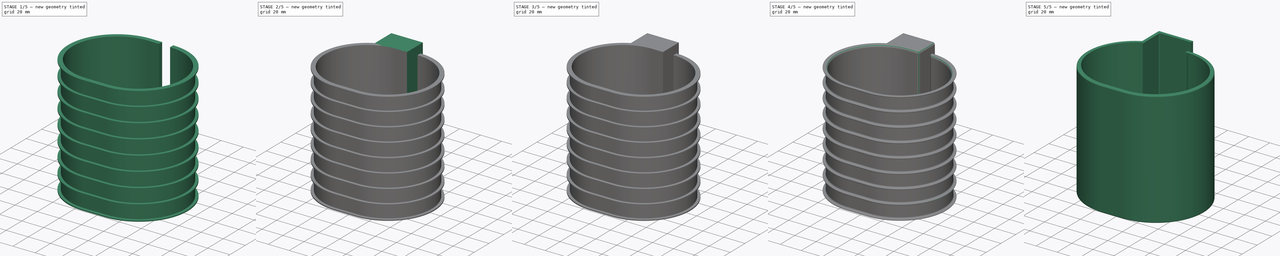
[diagram: build sequence overview — one tinted view per stage of 5, left to right]
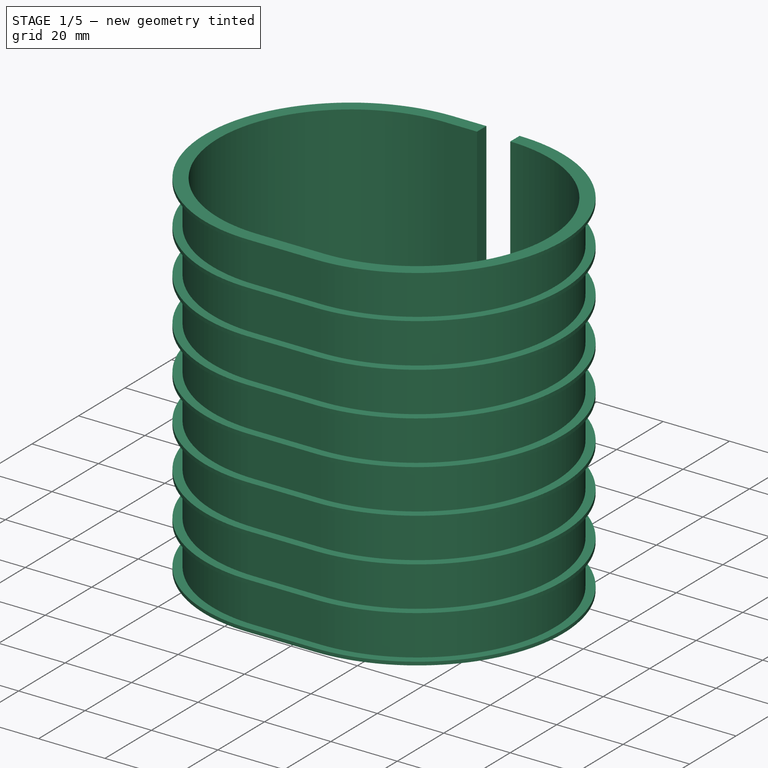
[diagram: stage 1 of 5 — iso view after this stage's code; geometry added in this stage tinted green]
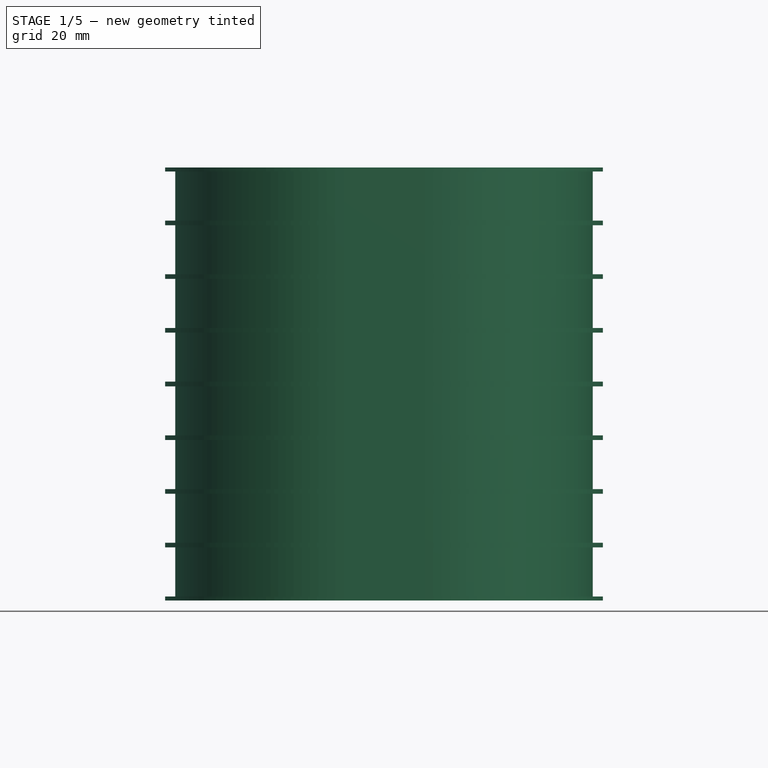
[diagram: stage 1 of 5 — front view after this stage's code; geometry added in this stage tinted green]
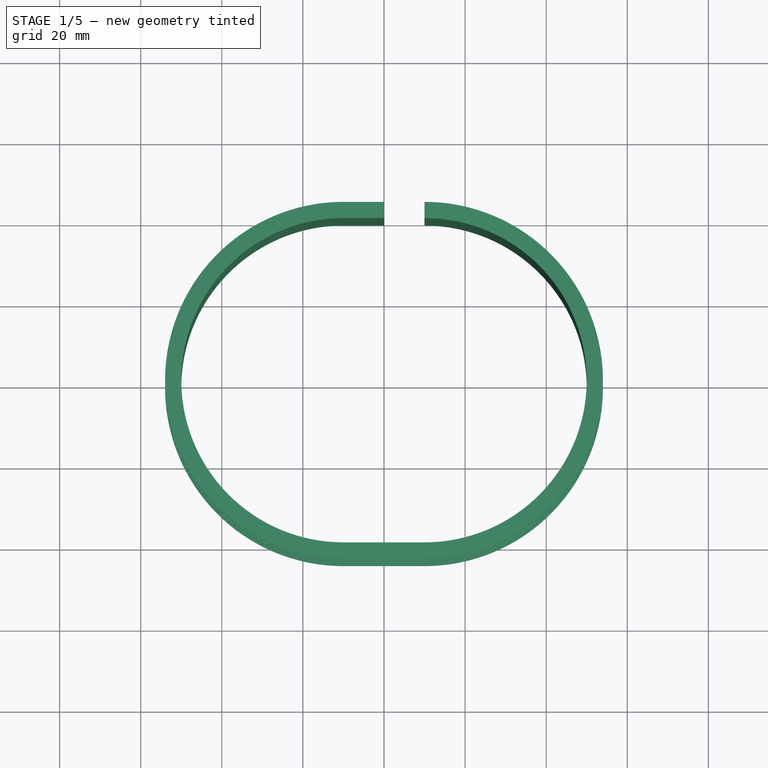
[diagram: stage 1 of 5 — top view after this stage's code; geometry added in this stage tinted green]
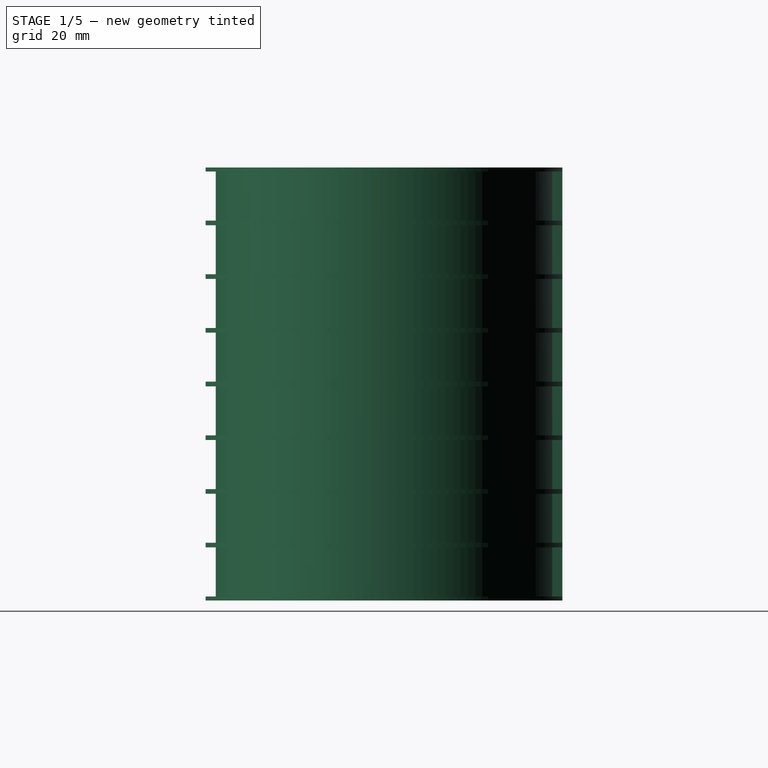
[diagram: stage 1 of 5 — right view after this stage's code; geometry added in this stage tinted green]
FCSTD DOCUMENT  (FreeCAD 1.0R39319 (Git))
Label: led-shield
License: All rights reserved
LicenseURL: https://en.wikipedia.org/wiki/All_rights_reserved
objects: Part::Feature×37, Sketcher::SketchObject×14, PartDesign::Pad×10, App::Part×7, PartDesign::Pocket×5, PartDesign::Fillet×5, PartDesign::Body×3, PartDesign::Mirrored×2, App::VarSet×1, PartDesign::Groove×1, PartDesign::LinearPattern×1, PartDesign::MultiTransform×1, PartDesign::SubShapeBinder×1, PartDesign::Plane×1, PartDesign::Chamfer×1
note: 144 computed .brp shape members not serialized (recipe doc carries the construction recipe); baked Part::Feature solids carry a one-line shape summary decoded from their .brp

FEATURE [Sketcher::SketchObject] Sketch
  ArcFitTolerance = 1e-06
  AttachmentSupport = -> [XY_Plane]
  FullyConstrained = true
  MakeInternals = false
  MapMode = 5
  expr: Constraints[17] = <<VarSet>>.WallThichness + <<VarSet>>.GrooveDepth
  sketch-geometry (8):
    g0: LineSegment StartX=-10 StartY=40 StartZ=0 EndX=10 EndY=40 EndZ=0
    g1: ArcOfCircle CenterX=10 CenterY=-4.2e-15 CenterZ=0 NormalX=0 NormalY=0 NormalZ=1 AngleXU=0 Radius=40 StartAngle=4.71239 EndAngle=7.85398
    g2: LineSegment StartX=10 StartY=-40 StartZ=0 EndX=-10 EndY=-40 EndZ=0
    g3: ArcOfCircle CenterX=-10 CenterY=0 CenterZ=0 NormalX=0 NormalY=0 NormalZ=1 AngleXU=0 Radius=40 StartAngle=1.5708 EndAngle=4.71239
    g4: LineSegment StartX=-10 StartY=44 StartZ=0 EndX=10 EndY=44 EndZ=0
    g5: ArcOfCircle CenterX=10 CenterY=4.724e-13 CenterZ=0 NormalX=0 NormalY=0 NormalZ=1 AngleXU=0 Radius=44 StartAngle=4.71239 EndAngle=7.85398
    g6: LineSegment StartX=10 StartY=-44 StartZ=0 EndX=-10 EndY=-44 EndZ=0
    g7: ArcOfCircle CenterX=-10 CenterY=0 CenterZ=0 NormalX=0 NormalY=0 NormalZ=1 AngleXU=0 Radius=44 StartAngle=1.5708 EndAngle=4.71239
  constraints (18):
    c: Tangent(g0,g1) = 1.5708
    c: Horizontal(g2)
    c: Tangent(g2,g3) = 1.5708
    c: Tangent(g3,g0) = 1.5708
    c: Symmetric(g0,g0,g-2)
    c: PointOnObject(g3,g-1)
    c: Tangent(g1,g2) = 1.5708
    c: Distance(g0,g0) = 20
    c: Radius(g3) = 40
    c: Tangent(g4,g5) = 1.5708
    c: Coincident(g5,g6)
    c: Horizontal(g6)
    c: Tangent(g6,g7) = 1.5708
    c: Equal(g2,g6)
    c: Coincident(g7,g3)
    c: Tangent(g7,g4) = 1.5708
    c: Symmetric(g4,g4,g-2)
    c: Distance(g4,g0) = 4
FEATURE [PartDesign::Pad] Pad
  Direction = (0,0,1)
  Length = 106.8
  Length2 = 10
  Profile = -> Sketch
  ReferenceAxis = -> Sketch [N_Axis]
  Refine = true
  Suppressed = false
  Type = 0
  expr: Length = (<<VarSet>>.RowGap + <<VarSet>>.GrooveWidth) * <<VarSet>>.Rows - <<VarSet>>.RowGap + 2 * <<VarSet>>.WallThichness
FEATURE [App::VarSet] VarSet
  GrooveDepth = 2.5
  GrooveWidth = 12.1
  RowGap = 1
  Rows = 8
  ShellOffset = 0.5
  ShellThickness = 1
  WallThichness = 1.5
FEATURE [Sketcher::SketchObject] Sketch001
  ArcFitTolerance = 1e-06
  AttachmentSupport = -> [Pad]
  ExternalGeometry = -> [Pad]
  FullyConstrained = true
  MakeInternals = false
  MapMode = 5
  Placement = pos=(1.874e-13,44,0) rot=(0,0.707107,0.707107;3.14159rad)
  sketch-geometry (4):
    g0: LineSegment StartX=-10 StartY=106.8 StartZ=0 EndX=-10 EndY=0 EndZ=0
    g1: LineSegment StartX=-10 StartY=0 StartZ=0 EndX=0 EndY=0 EndZ=0
    g2: LineSegment StartX=0 StartY=0 StartZ=0 EndX=0 EndY=106.8 EndZ=0
    g3: LineSegment StartX=0 StartY=106.8 StartZ=0 EndX=-10 EndY=106.8 EndZ=0
  constraints (10):
    c: Coincident(g0,g1)
    c: Coincident(g1,g2)
    c: Coincident(g2,g3)
    c: Coincident(g3,g0)
    c: Vertical(g0)
    c: Vertical(g2)
    c: Horizontal(g1)
    c: Horizontal(g3)
    c: Coincident(g0,g-3)
    c: Coincident(g1,g-1)
FEATURE [PartDesign::Pocket] Pocket
  BaseFeature = -> Pad
  Direction = (-4.3e-15,-1,2e-16)
  Length = 5
  Length2 = 5
  Profile = -> Sketch001
  ReferenceAxis = -> Sketch001 [N_Axis]
  Refine = true
  Suppressed = false
  Type = 2
FEATURE [Sketcher::SketchObject] Sketch002
  ArcFitTolerance = 1e-06
  AttachmentSupport = -> [Pocket]
  ExternalGeometry = -> [Pocket]
  FullyConstrained = true
  MakeInternals = false
  MapMode = 5
  Placement = pos=(10,-4.26e-14,0) rot=(-0.57735,0.57735,0.57735;4.18879rad)
  expr: Constraints[10] = <<VarSet>>.GrooveWidth
  expr: Constraints[11] = <<VarSet>>.RowGap
  expr: Constraints[9] = <<VarSet>>.GrooveDepth
  sketch-geometry (4):
    g0: LineSegment StartX=-44 StartY=13.1 StartZ=0 EndX=-44 EndY=1 EndZ=0
    g1: LineSegment StartX=-44 StartY=1 StartZ=0 EndX=-41.5 EndY=1 EndZ=0
    g2: LineSegment StartX=-41.5 StartY=1 StartZ=0 EndX=-41.5 EndY=13.1 EndZ=0
    g3: LineSegment StartX=-41.5 StartY=13.1 StartZ=0 EndX=-44 EndY=13.1 EndZ=0
  constraints (12):
    c: Coincident(g0,g1)
    c: Coincident(g1,g2)
    c: Coincident(g2,g3)
    c: Coincident(g3,g0)
    c: Vertical(g0)
    c: Vertical(g2)
    c: Horizontal(g1)
    c: Horizontal(g3)
    c: PointOnObject(g0,g-3)
    c: Distance(g3,g3) = 2.5
    c: Distance(g0,g0) = 12.1
    c: DistanceY(g-1,g0) = 1
FEATURE [PartDesign::Groove] Groove
  Angle = 180
  Angle2 = 60
  Axis = (1e-16,-1e-16,1)
  Base = (10,-4.26e-14,0)
  BaseFeature = -> Pocket
  Profile = -> Sketch002
  ReferenceAxis = -> Sketch002 [V_Axis]
  Refine = true
  Reversed = true
  Suppressed = false
  Type = 0
FEATURE [Sketcher::SketchObject] Sketch003
  ArcFitTolerance = 1e-06
  AttachmentSupport = -> [Groove]
  ExternalGeometry = -> [Groove]
  FullyConstrained = true
  MakeInternals = false
  MapMode = 5
  Placement = pos=(10,-4.26e-14,0) rot=(0.57735,0.57735,0.57735;2.0944rad)
  sketch-geometry (4):
    g0: LineSegment StartX=-44 StartY=13.1 StartZ=0 EndX=-44 EndY=1 EndZ=0
    g1: LineSegment StartX=-44 StartY=1 StartZ=0 EndX=-41.5 EndY=1 EndZ=0
    g2: LineSegment StartX=-41.5 StartY=1 StartZ=0 EndX=-41.5 EndY=13.1 EndZ=0
    g3: LineSegment StartX=-41.5 StartY=13.1 StartZ=0 EndX=-44 EndY=13.1 EndZ=0
  constraints (10):
    c: Coincident(g0,g1)
    c: Coincident(g1,g2)
    c: Coincident(g2,g3)
    c: Coincident(g3,g0)
    c: Vertical(g0)
    c: Vertical(g2)
    c: Horizontal(g1)
    c: Horizontal(g3)
    c: Coincident(g0,g-3)
    c: Coincident(g1,g-4)
FEATURE [PartDesign::Pocket] Pocket001
  BaseFeature = -> Groove
  Direction = (-1,4.1e-15,1e-16)
  Length = 20
  Length2 = 5
  Profile = -> Sketch003
  ReferenceAxis = -> Sketch003 [N_Axis]
  Refine = true
  Suppressed = false
  Type = 0
FEATURE [PartDesign::Mirrored] Mirrored
  MirrorPlane = -> YZ_Plane
  Refine = true
  Suppressed = false
  TransformMode = 0
FEATURE [PartDesign::LinearPattern] LinearPattern
  Direction = -> Z_Axis
  Length = 92.7
  Mode = 0
  Occurrences = 8
  Offset = 13.2429
  Refine = true
  Suppressed = false
  TransformMode = 0
  expr: Length = <<Pad>>.Length - 2 * <<VarSet>>.RowGap - <<VarSet>>.GrooveWidth
  expr: Occurrences = <<VarSet>>.Rows
FEATURE [PartDesign::MultiTransform] MultiTransform
  BaseFeature = -> Pocket001
  Originals = -> [Pocket001,Groove]
  Refine = true
  Suppressed = false
  TransformMode = 0
  Transformations = -> [Mirrored,LinearPattern]
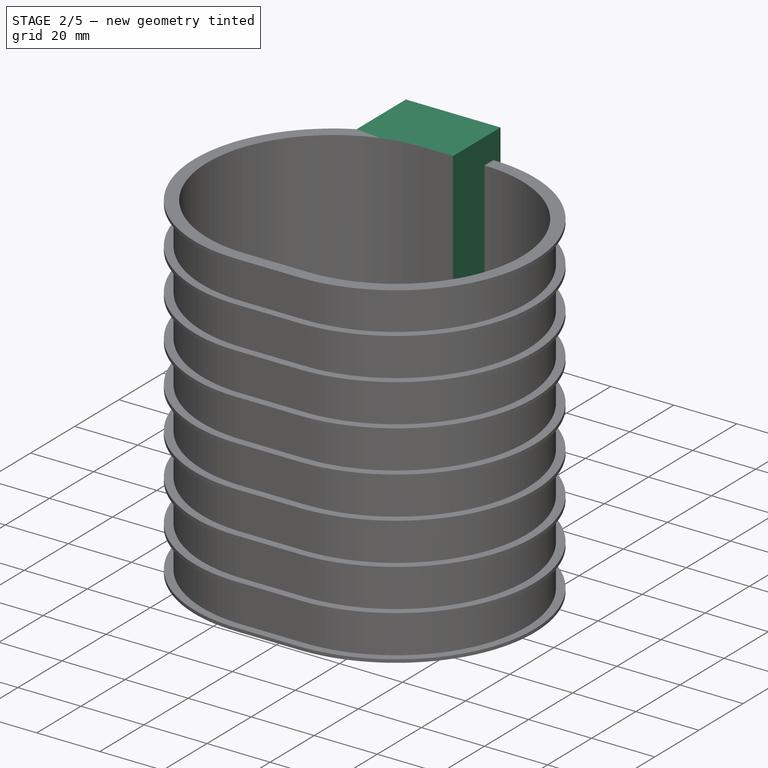
[diagram: stage 2 of 5 — iso view after this stage's code; geometry added in this stage tinted green]
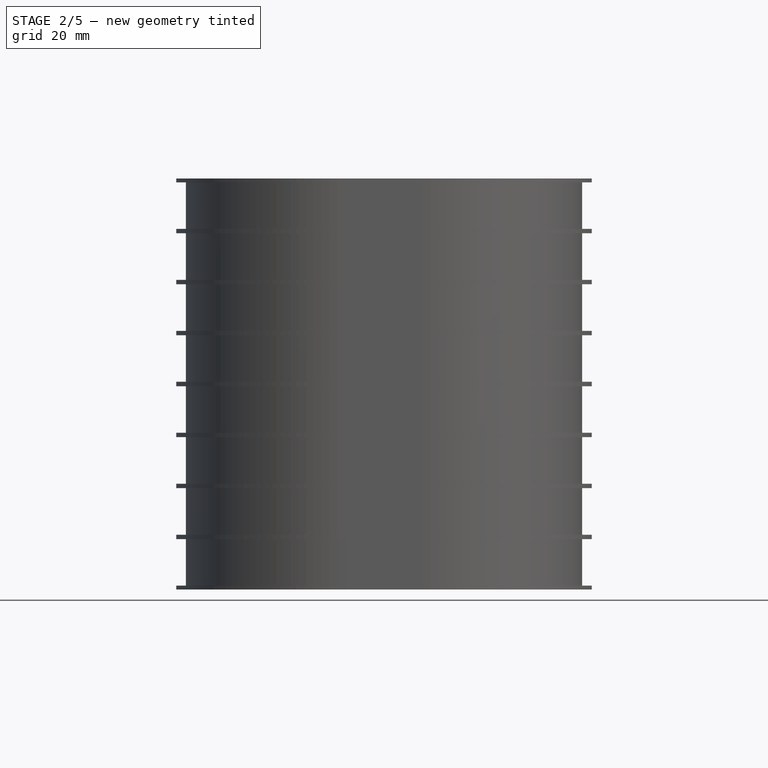
[diagram: stage 2 of 5 — front view after this stage's code; geometry added in this stage tinted green]
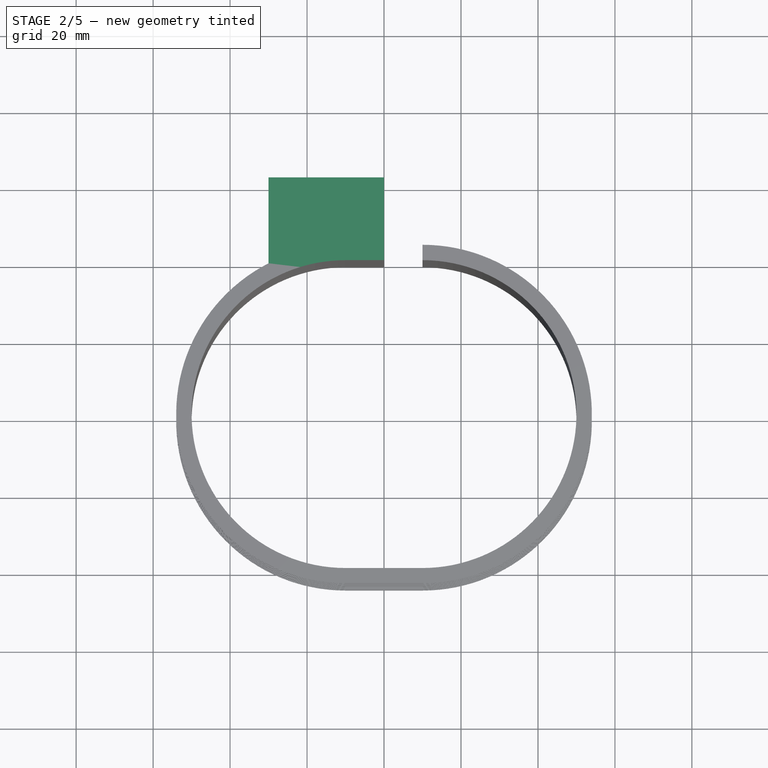
[diagram: stage 2 of 5 — top view after this stage's code; geometry added in this stage tinted green]
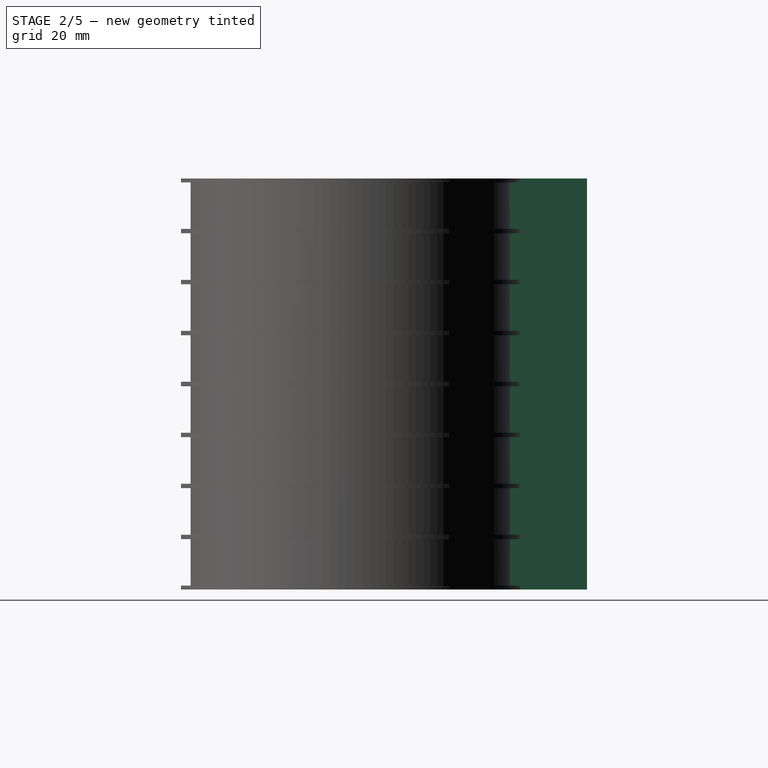
[diagram: stage 2 of 5 — right view after this stage's code; geometry added in this stage tinted green]
FEATURE [Sketcher::SketchObject] Sketch004
  ArcFitTolerance = 1e-06
  AttachmentSupport = -> [MultiTransform]
  ExternalGeometry = -> [MultiTransform]
  FullyConstrained = true
  MakeInternals = false
  MapMode = 5
  Placement = pos=(-10,-4.04e-14,-2.2e-15) rot=(0.57735,-0.57735,-0.57735;2.0944rad)
  sketch-geometry (4):
    g0: LineSegment StartX=-44 StartY=106.8 StartZ=0 EndX=-44 EndY=0 EndZ=0
    g1: LineSegment StartX=-44 StartY=0 StartZ=0 EndX=-40 EndY=0 EndZ=0
    g2: LineSegment StartX=-40 StartY=0 StartZ=0 EndX=-40 EndY=106.8 EndZ=0
    g3: LineSegment StartX=-40 StartY=106.8 StartZ=0 EndX=-44 EndY=106.8 EndZ=0
  constraints (10):
    c: Coincident(g0,g1)
    c: Coincident(g1,g2)
    c: Coincident(g2,g3)
    c: Coincident(g3,g0)
    c: Vertical(g0)
    c: Vertical(g2)
    c: Horizontal(g1)
    c: Horizontal(g3)
    c: Coincident(g0,g-4)
    c: Coincident(g1,g-3)
FEATURE [PartDesign::Pad] Pad001
  BaseFeature = -> MultiTransform
  Direction = (-1,-4e-15,0)
  Length = 20
  Length2 = 10
  Profile = -> Sketch004
  ReferenceAxis = -> Sketch004 [N_Axis]
  Refine = true
  Suppressed = false
  Type = 0
FEATURE [PartDesign::Pad] Pad002
  BaseFeature = -> Pad001
  Direction = (-2.3e-15,1,0)
  Length = 17.5
  Length2 = 10
  Profile = -> Pad001 [Face76]
  Refine = true
  Suppressed = false
  Type = 0
FEATURE [Sketcher::SketchObject] Sketch005
  ArcFitTolerance = 1e-06
  AttachmentSupport = -> [Pad002]
  ExternalGeometry = -> [Pad002]
  FullyConstrained = true
  MakeInternals = false
  MapMode = 5
  Placement = pos=(-1.433e-13,61.5,0) rot=(0,0.707107,0.707107;3.14159rad)
  expr: Constraints[22] = VarSet.WallThichness
  sketch-geometry (8):
    g0: LineSegment StartX=1.5 StartY=105.3 StartZ=0 EndX=1.5 EndY=1.5 EndZ=0
    g1: LineSegment StartX=1.5 StartY=1.5 StartZ=0 EndX=28.5 EndY=1.5 EndZ=0
    g2: LineSegment StartX=28.5 StartY=1.5 StartZ=0 EndX=28.5 EndY=105.3 EndZ=0
    g3: LineSegment StartX=28.5 StartY=105.3 StartZ=0 EndX=1.5 EndY=105.3 EndZ=0
    g4: LineSegment [constr] StartX=28.5 StartY=105.3 StartZ=0 EndX=30 EndY=105.3 EndZ=0
    g5: LineSegment [constr] StartX=28.5 StartY=1.5 StartZ=0 EndX=28.5 EndY=0 EndZ=0
    g6: LineSegment [constr] StartX=1.5 StartY=105.3 StartZ=0 EndX=1.69e-14 EndY=105.3 EndZ=0
    g7: LineSegment [constr] StartX=28.5 StartY=105.3 StartZ=0 EndX=28.5 EndY=106.8 EndZ=0
  constraints (24):
    c: Coincident(g0,g1)
    c: Coincident(g1,g2)
    c: Coincident(g2,g3)
    c: Coincident(g3,g0)
    c: Vertical(g0)
    c: Vertical(g2)
    c: Horizontal(g1)
    c: Horizontal(g3)
    c: Coincident(g4,g2)
    c: PointOnObject(g4,g-4)
    c: Horizontal(g4)
    c: Coincident(g5,g1)
    c: PointOnObject(g5,g-1)
    c: Coincident(g6,g0)
    c: PointOnObject(g6,g-5)
    c: Horizontal(g6)
    c: Equal(g6,g4)
    c: Vertical(g5)
    c: Coincident(g7,g2)
    c: PointOnObject(g7,g-3)
    c: Vertical(g7)
    c: Equal(g7,g4)
    c: Distance(g4,g4) = 1.5
    c: Equal(g5,g4)
FEATURE [PartDesign::Pocket] Pocket002
  BaseFeature = -> Pad002
  Direction = (2.3e-15,-1,2e-16)
  Length = 20
  Length2 = 5
  Profile = -> Sketch005
  ReferenceAxis = -> Sketch005 [N_Axis]
  Refine = true
  Suppressed = false
  Type = 0
  expr: Length = <<Pad002>>.Length + <<VarSet>>.GrooveDepth
FEATURE [PartDesign::Body] Body001  label="18650"
  AllowCompound = false
  Group = -> [Sketch007,Pad004]
  Origin = -> Origin001
  Placement = pos=(-11,51.5,47) rot=(0,0,1;0rad)
  Tip = -> Pad004
FEATURE [Sketcher::SketchObject] Sketch008
  ArcFitTolerance = 1e-06
  AttachmentSupport = -> [Pocket002]
  ExternalGeometry = -> [Pocket002]
  FullyConstrained = true
  MakeInternals = false
  MapMode = 5
  Placement = pos=(0,0,-1e-16) rot=(1,0,0;3.14159rad)
  sketch-geometry (3):
    g0: LineSegment StartX=-30 StartY=-36.3628 StartZ=0 EndX=-30 EndY=-40 EndZ=0
    g1: ArcOfCircle CenterX=-10 CenterY=-2.2e-15 CenterZ=0 NormalX=0 NormalY=0 NormalZ=1 AngleXU=0 Radius=41.5 StartAngle=4.20954 EndAngle=4.44271
    g2: LineSegment StartX=-30 StartY=-40 StartZ=0 EndX=-21.0567 EndY=-40 EndZ=0
  constraints (7):
    c: Vertical(g0)
    c: Coincident(g1,g-3)
    c: Coincident(g1,g0)
    c: Coincident(g1,g-4)
    c: Coincident(g0,g-5)
    c: Coincident(g2,g0)
    c: Coincident(g2,g1)
FEATURE [PartDesign::Pad] Pad005
  BaseFeature = -> Pocket002
  Direction = (0,0,-1)
  Length = 106.8
  Length2 = 10
  Profile = -> Sketch008
  ReferenceAxis = -> Sketch008 [N_Axis]
  Refine = true
  Reversed = true
  Suppressed = false
  Type = 0
  expr: Length = <<Pad>>.Length
FEATURE [Sketcher::SketchObject] Sketch009
  ArcFitTolerance = 1e-06
  AttachmentSupport = -> [Pad005]
  ExternalGeometry = -> [Pad005]
  FullyConstrained = true
  MakeInternals = false
  MapMode = 5
  Placement = pos=(0,2.32e-14,105.3) rot=(1,0,0;3.14159rad)
  sketch-geometry (7):
    g0: ArcOfCircle CenterX=-10.9868 CenterY=-51.5 CenterZ=0 NormalX=0 NormalY=0 NormalZ=1 AngleXU=0 Radius=9.5 StartAngle=0.0526559 EndAngle=3.08894
    g1: LineSegment StartX=-1.5 StartY=-51 StartZ=0 EndX=-1.5 EndY=-41.5 EndZ=0
    g2: LineSegment StartX=-20.4737 StartY=-51 StartZ=0 EndX=-20.4737 EndY=-41.5 EndZ=0
    g3: GeomPoint X=-10.9868 Y=-41.5 Z=0
    g4: LineSegment StartX=-20.4737 StartY=-41.5 StartZ=0 EndX=-1.5 EndY=-41.5 EndZ=0
    g5: GeomPoint X=-10.9868 Y=-42 Z=0
    g6: LineSegment [constr] StartX=-10.9868 StartY=-42 StartZ=0 EndX=-10.9868 EndY=-41.5 EndZ=0
  constraints (17):
    c: Coincident(g1,g0)
    c: Vertical(g1)
    c: Coincident(g2,g0)
    c: PointOnObject(g2,g-3)
    c: Vertical(g2)
    c: Coincident(g1,g-3)
    c: Equal(g1,g2)
    c: Radius(g0) = 9.5
    c: Symmetric(g1,g2,g3)
    c: Distance(g2,g2) = 9.5
    c: Coincident(g4,g2)
    c: Coincident(g4,g1)
    c: PointOnObject(g5,g0)
    c: Coincident(g6,g5)
    c: Coincident(g6,g3)
    c: Vertical(g6)
    c: Distance(g6,g6) = 0.5
FEATURE [PartDesign::Pad] Pad006
  BaseFeature = -> Pad005
  Direction = (0,0,-1)
  Length = 60
  Length2 = 10
  Profile = -> Sketch009
  ReferenceAxis = -> Sketch009 [N_Axis]
  Refine = true
  Suppressed = false
  Type = 0
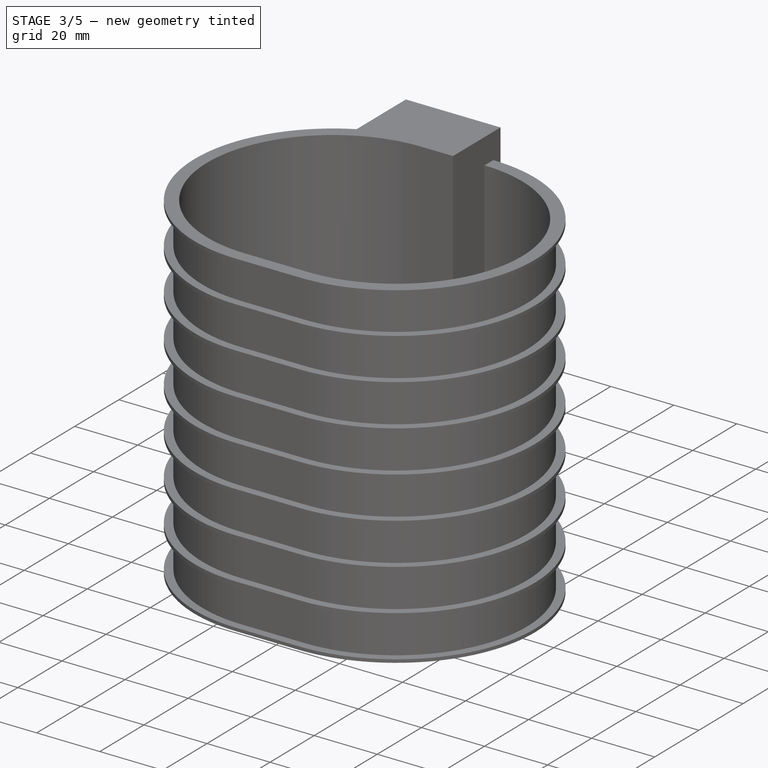
[diagram: stage 3 of 5 — iso view after this stage's code; geometry added in this stage tinted green]
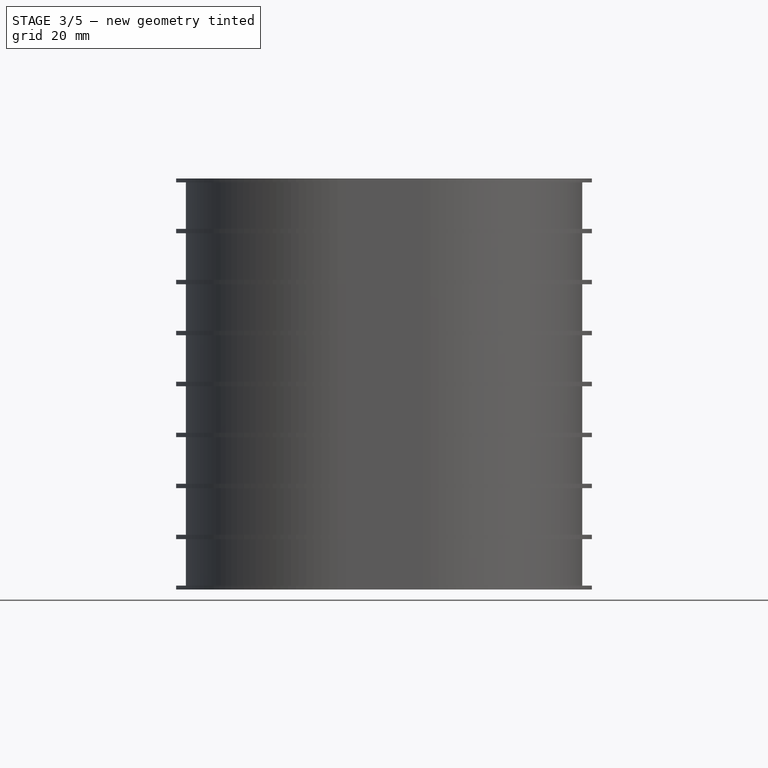
[diagram: stage 3 of 5 — front view after this stage's code; geometry added in this stage tinted green]
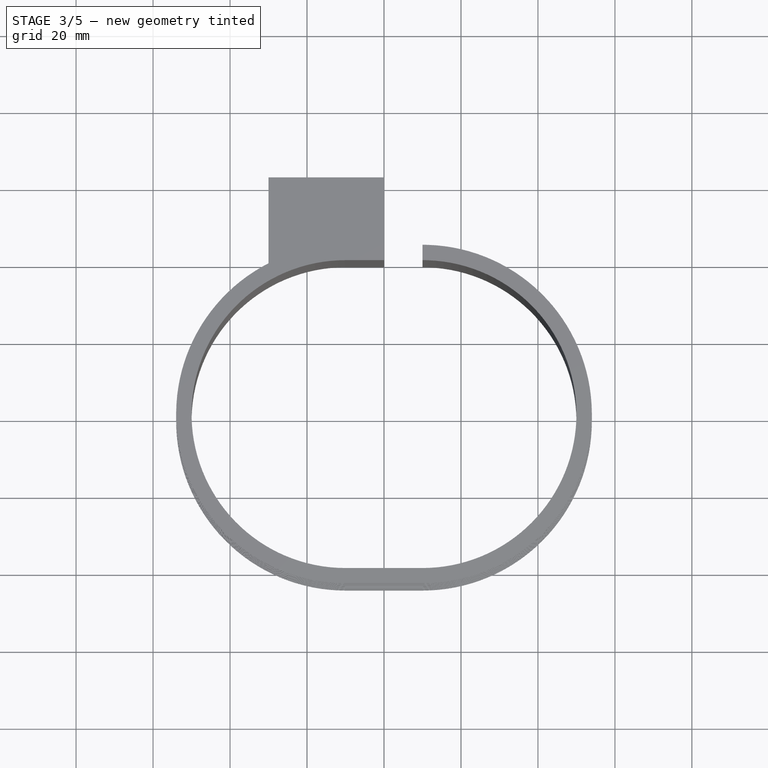
[diagram: stage 3 of 5 — top view after this stage's code; geometry added in this stage tinted green]
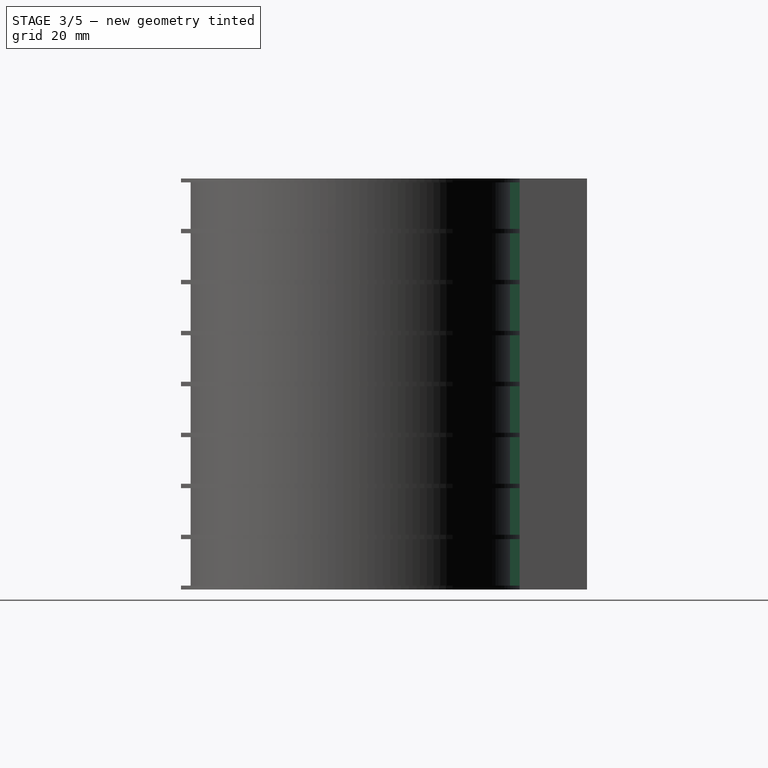
[diagram: stage 3 of 5 — right view after this stage's code; geometry added in this stage tinted green]
FEATURE [Sketcher::SketchObject] Sketch010
  ArcFitTolerance = 1e-06
  AttachmentSupport = -> [Pad006]
  ExternalGeometry = -> [Pad006]
  FullyConstrained = true
  MakeInternals = false
  MapMode = 5
  Placement = pos=(-9.84e-14,41.5,0) rot=(0,0.707107,0.707107;3.14159rad)
  sketch-geometry (4):
    g0: LineSegment StartX=1.5 StartY=24.5 StartZ=0 EndX=1.5 EndY=23.5 EndZ=0
    g1: LineSegment StartX=1.5 StartY=23.5 StartZ=0 EndX=21.5 EndY=23.5 EndZ=0
    g2: LineSegment StartX=21.5 StartY=23.5 StartZ=0 EndX=21.5 EndY=24.5 EndZ=0
    g3: LineSegment StartX=21.5 StartY=24.5 StartZ=0 EndX=1.5 EndY=24.5 EndZ=0
  constraints (12):
    c: Coincident(g0,g1)
    c: Coincident(g1,g2)
    c: Coincident(g2,g3)
    c: Coincident(g3,g0)
    c: Vertical(g0)
    c: Vertical(g2)
    c: Horizontal(g1)
    c: Horizontal(g3)
    c: PointOnObject(g0,g-3)
    c: Distance(g2,g2) = 1
    c: Distance(g-3,g1) = 22
    c: DistanceX(g3,g3) = 20
FEATURE [PartDesign::Pad] Pad007
  BaseFeature = -> Pad006
  Direction = (-2.4e-15,1,-2e-16)
  Length = 5
  Length2 = 10
  Profile = -> Sketch010
  ReferenceAxis = -> Sketch010 [N_Axis]
  Refine = true
  Suppressed = false
  Type = 0
FEATURE [Sketcher::SketchObject] Sketch011
  ArcFitTolerance = 1e-06
  AttachmentSupport = -> [Pad007]
  ExternalGeometry = -> [Pad007]
  FullyConstrained = true
  MakeInternals = false
  MapMode = 5
  Placement = pos=(0,0,-1e-16) rot=(1,0,0;3.14159rad)
  sketch-geometry (8):
    g0: LineSegment StartX=-7.7 StartY=-45.15 StartZ=0 EndX=-7.7 EndY=-44 EndZ=0
    g1: ArcOfCircle CenterX=-9.2 CenterY=-44 CenterZ=0 NormalX=0 NormalY=0 NormalZ=1 AngleXU=0 Radius=1.5 StartAngle=2e-15 EndAngle=1.5708
    g2: LineSegment StartX=-9.2 StartY=-42.5 StartZ=0 EndX=-15.4 EndY=-42.5 EndZ=0
    g3: ArcOfCircle CenterX=-15.4 CenterY=-44 CenterZ=0 NormalX=0 NormalY=0 NormalZ=1 AngleXU=0 Radius=1.5 StartAngle=1.5708 EndAngle=3.14159
    g4: LineSegment StartX=-16.9 StartY=-44 StartZ=0 EndX=-16.9 EndY=-45.15 EndZ=0
    g5: ArcOfCircle CenterX=-15.4 CenterY=-45.15 CenterZ=0 NormalX=0 NormalY=0 NormalZ=1 AngleXU=0 Radius=1.5 StartAngle=3.14159 EndAngle=4.71239
    g6: ArcOfCircle CenterX=-9.2 CenterY=-45.15 CenterZ=0 NormalX=0 NormalY=0 NormalZ=1 AngleXU=0 Radius=1.5 StartAngle=4.71239 EndAngle=6.28319
    g7: LineSegment StartX=-9.2 StartY=-46.65 StartZ=0 EndX=-15.4 EndY=-46.65 EndZ=0
  constraints (20):
    c: Vertical(g0)
    c: Tangent(g0,g1) = -1.5708
    c: Horizontal(g2)
    c: Tangent(g2,g3) = -1.5708
    c: Vertical(g4)
    c: Equal(g0,g4)
    c: Tangent(g3,g4) = -1.5708
    c: Tangent(g1,g2) = -1.5708
    c: Distance(g0,g4) = 9.2
    c: Distance(g1,g-3) = 19
    c: Radius(g3) = 1.5
    c: Distance(g0,g-4) = 6.2
    c: Equal(g3,g1)
    c: Horizontal(g7)
    c: Tangent(g5,g4) = -1.5708
    c: Tangent(g7,g6) = 1.5708
    c: Tangent(g7,g5) = 1.5708
    c: Tangent(g6,g0) = -1.5708
    c: Distance(g4,g4) = 1.15
    c: Equal(g7,g2)
FEATURE [PartDesign::Pocket] Pocket003
  BaseFeature = -> Pad007
  Direction = (0,0,1)
  Length = 5
  Length2 = 5
  Profile = -> Sketch011
  ReferenceAxis = -> Sketch011 [N_Axis]
  Refine = true
  Suppressed = false
  Type = 2
FEATURE [PartDesign::Pocket] Pocket004
  BaseFeature = -> Pocket003
  Direction = (-1,-2.3e-15,0)
  Length = 5
  Length2 = 5
  Profile = -> Pocket003 [Face58]
  Refine = true
  Suppressed = false
  Type = 2
FEATURE [Sketcher::SketchObject] Sketch014
  ArcFitTolerance = 1e-06
  AttachmentSupport = -> [Pocket004]
  ExternalGeometry = -> [Pocket004]
  FullyConstrained = true
  MakeInternals = false
  MapMode = 5
  Placement = pos=(0,0,-1e-16) rot=(1,0,0;3.14159rad)
  expr: Constraints[7] = <<VarSet>>.WallThichness
  sketch-geometry (4):
    g0: LineSegment StartX=10 StartY=-40 StartZ=0 EndX=10 EndY=-44 EndZ=0
    g1: LineSegment StartX=11.4997 StartY=-39.9719 StartZ=0 EndX=11.4997 EndY=-43.9744 EndZ=0
    g2: ArcOfCircle CenterX=10 CenterY=4.2e-15 CenterZ=0 NormalX=0 NormalY=0 NormalZ=1 AngleXU=0 Radius=40 StartAngle=4.71239 EndAngle=4.74989
    g3: ArcOfCircle CenterX=10 CenterY=0 CenterZ=0 NormalX=0 NormalY=0 NormalZ=1 AngleXU=0 Radius=44 StartAngle=4.71239 EndAngle=4.74648
  constraints (11):
    c: Coincident(g0,g-4)
    c: Coincident(g0,g-3)
    c: PointOnObject(g1,g-3)
    c: Vertical(g1)
    c: Coincident(g2,g-4)
    c: Coincident(g2,g1)
    c: Coincident(g2,g0)
    c: Distance(g0,g1) = 1.5
    c: Coincident(g3,g0)
    c: Coincident(g3,g1)
    c: PointOnObject(g3,g-1)
FEATURE [PartDesign::Pad] Pad010
  BaseFeature = -> Pocket004
  Direction = (0,0,-1)
  Length = 106.8
  Length2 = 10
  Profile = -> Sketch014
  ReferenceAxis = -> Sketch014 [N_Axis]
  Refine = true
  Reversed = true
  Suppressed = false
  Type = 0
  expr: Length = <<Pad>>.Length
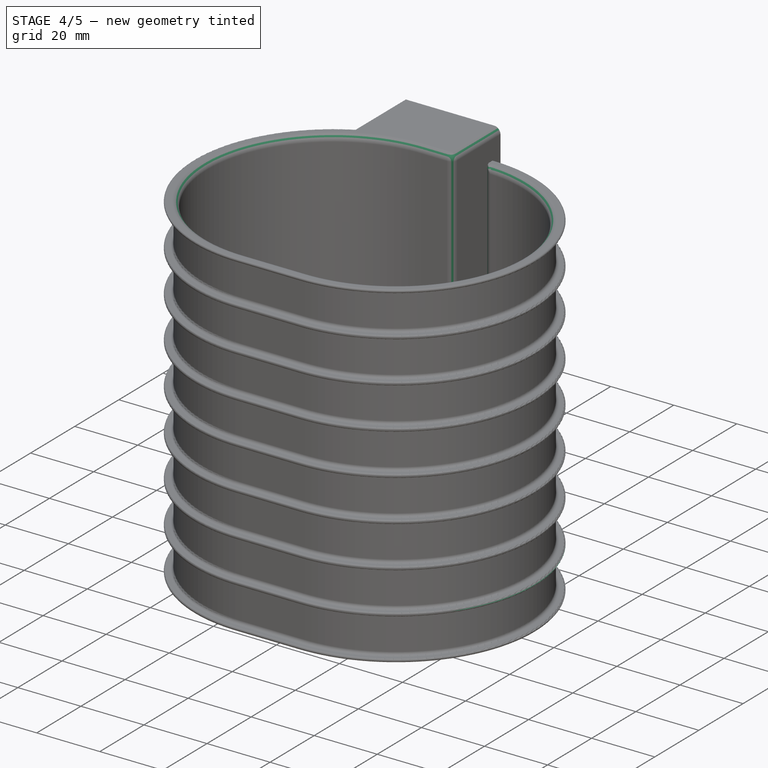
[diagram: stage 4 of 5 — iso view after this stage's code; geometry added in this stage tinted green]
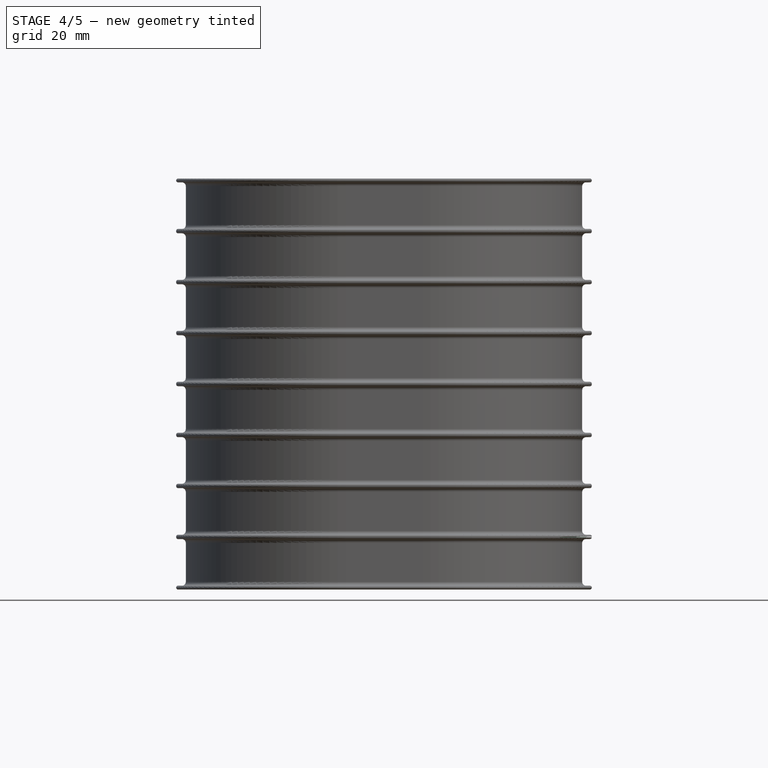
[diagram: stage 4 of 5 — front view after this stage's code; geometry added in this stage tinted green]
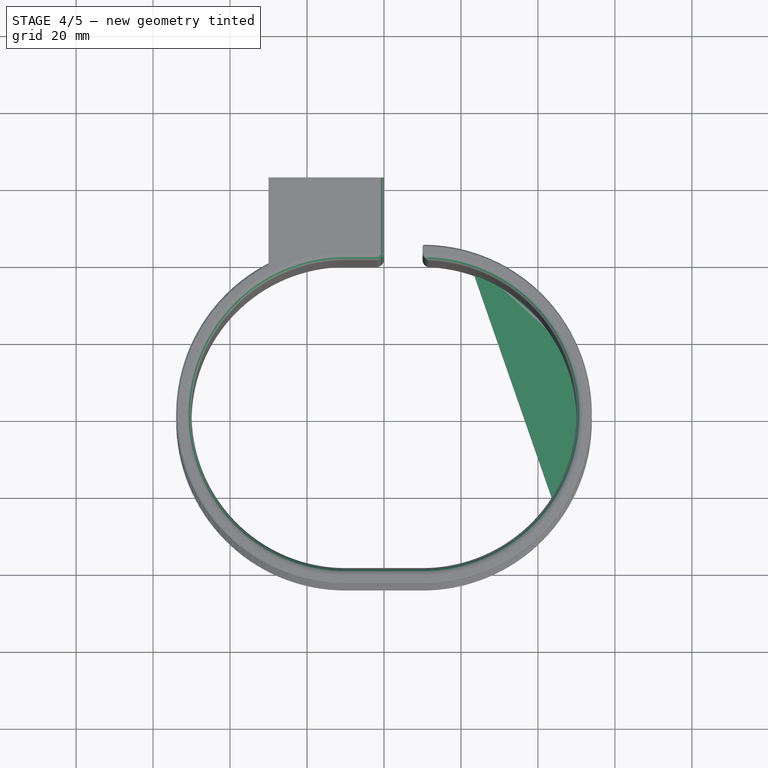
[diagram: stage 4 of 5 — top view after this stage's code; geometry added in this stage tinted green]
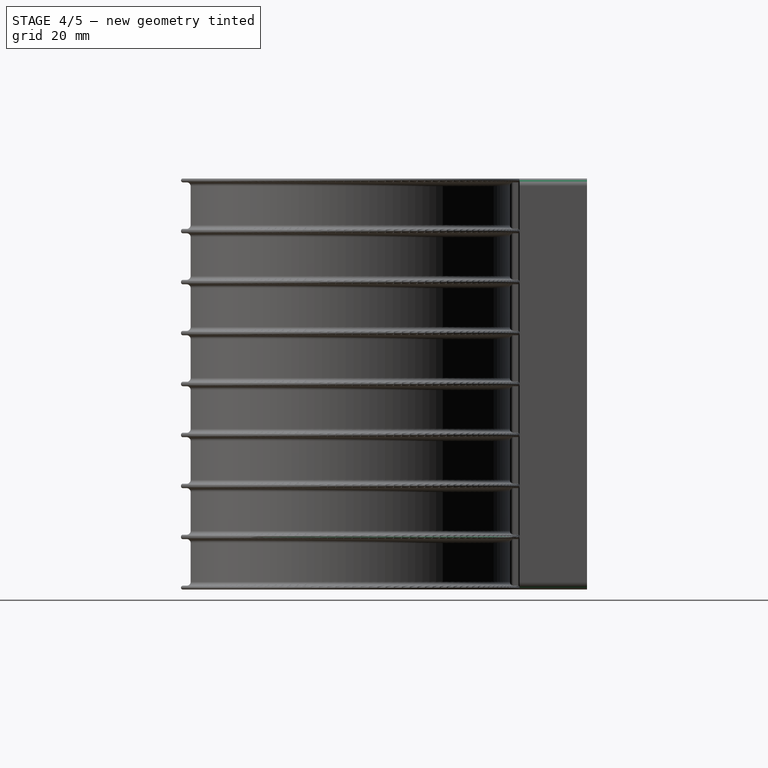
[diagram: stage 4 of 5 — right view after this stage's code; geometry added in this stage tinted green]
FEATURE [PartDesign::Fillet] Fillet
  Base = -> Pad010 [Face68,Face64,Face72,Face76,Face80,Face84,Face88,Face12]
  BaseFeature = -> Pad010
  Radius = 1
  Refine = true
  SupportTransform = false
  Suppressed = false
  UseAllEdges = false
FEATURE [PartDesign::Fillet] Fillet001
  Base = -> Fillet [Face4]
  BaseFeature = -> Fillet
  Radius = 0.49
  Refine = true
  SupportTransform = false
  Suppressed = false
  UseAllEdges = false
FEATURE [PartDesign::Fillet] Fillet002
  Base = -> Fillet001 [Edge479,Edge249,Edge188,Edge182,Edge180,Edge187,Edge186,Edge242,Edge475,Edge240]
  BaseFeature = -> Fillet001
  Radius = 2
  Refine = true
  SupportTransform = false
  Suppressed = false
  UseAllEdges = false
FEATURE [PartDesign::Chamfer] Chamfer
  Angle = 76
  Base = -> Fillet002 [Edge56]
  BaseFeature = -> Fillet002
  ChamferType = 1
  FlipDirection = false
  Refine = true
  Size = 2
  Size2 = 7
  SupportTransform = false
  Suppressed = false
  UseAllEdges = false
FEATURE [PartDesign::Fillet] Fillet003
  Base = -> Chamfer [Edge102,Edge358,Edge334,Edge343,Edge333,Edge359,Edge339,Face201,Edge338,Edge335,Edge337,Edge336,Edge589,Edge591,Edge81,Edge79,Edge80,Edge7,Edge2]
  BaseFeature = -> Chamfer
  Radius = 0.49
  Refine = true
  SupportTransform = false
  Suppressed = false
  UseAllEdges = false
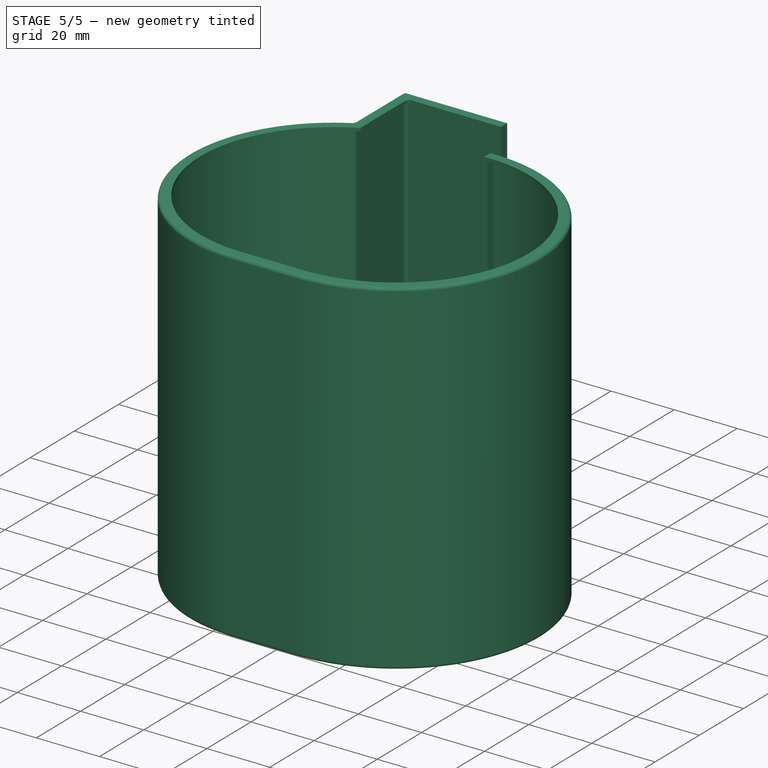
[diagram: stage 5 of 5 — iso view after this stage's code; geometry added in this stage tinted green]
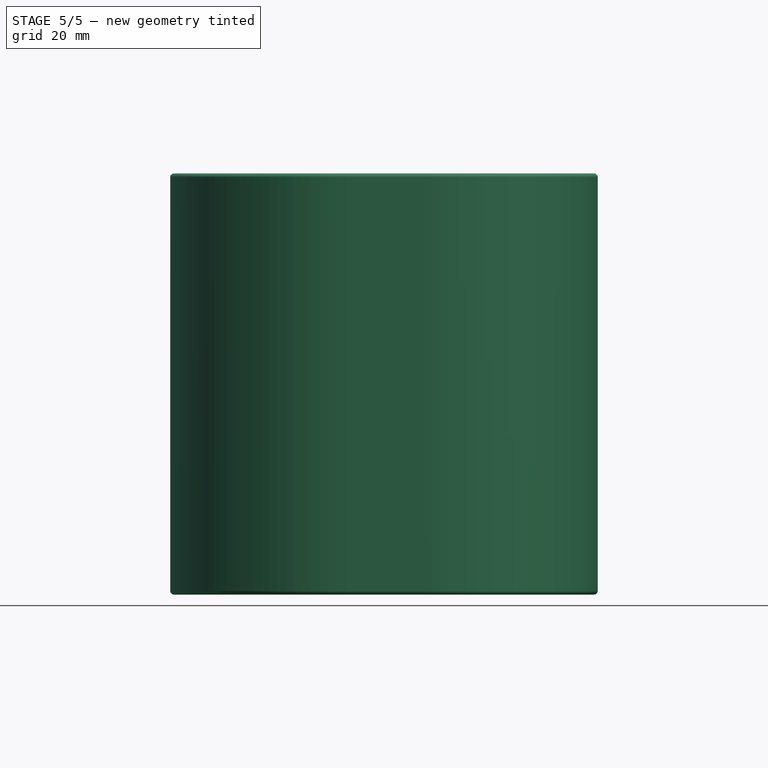
[diagram: stage 5 of 5 — front view after this stage's code; geometry added in this stage tinted green]
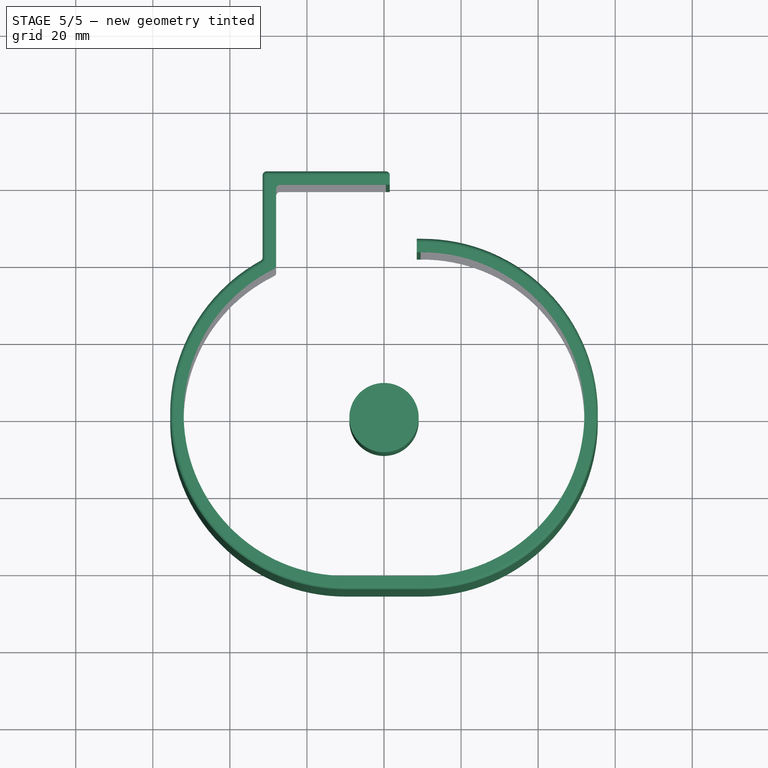
[diagram: stage 5 of 5 — top view after this stage's code; geometry added in this stage tinted green]
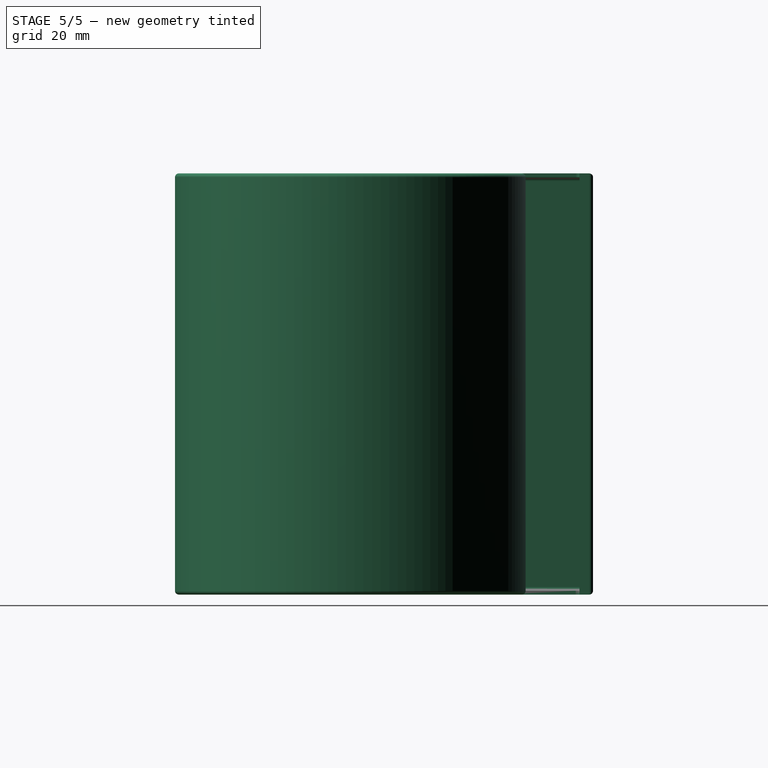
[diagram: stage 5 of 5 — right view after this stage's code; geometry added in this stage tinted green]
FEATURE [Part::Feature] Part__Feature  label="BOSS-EXTRUDE14_8_"
  shape: bbox 0.6 x 1 x 0.3 mm, 6 faces (baked)
FEATURE [Part::Feature] Part__Feature001  label="BOSS-EXTRUDE7_4_"
  shape: bbox 0.3 x 3.784 x 0.75 mm, 6 faces (baked)
FEATURE [Part::Feature] Part__Feature002  label="BOSS-EXTRUDE7_3_"
  shape: bbox 0.3 x 3.784 x 0.75 mm, 6 faces (baked)
FEATURE [Part::Feature] Part__Feature003  label="BOSS-EXTRUDE14_4_"
  shape: bbox 0.3 x 1 x 0.3 mm, 6 faces (baked)
FEATURE [Part::Feature] Part__Feature004  label="BOSS-EXTRUDE14_2_"
  shape: bbox 0.6 x 1 x 0.3 mm, 6 faces (baked)
FEATURE [Part::Feature] Part__Feature005  label="BOSS-EXTRUDE14_11_"
  shape: bbox 0.3 x 1 x 0.3 mm, 6 faces (baked)
FEATURE [Part::Feature] Part__Feature006  label="BOSS-EXTRUDE7_7_"
  shape: bbox 0.3 x 3.784 x 0.75 mm, 6 faces (baked)
FEATURE [Part::Feature] Part__Feature007  label="BOSS-EXTRUDE14_9_"
  shape: bbox 0.3 x 1 x 0.3 mm, 6 faces (baked)
FEATURE [Part::Feature] Part__Feature008  label="BOSS-EXTRUDE14_3_"
  shape: bbox 0.3 x 1 x 0.3 mm, 6 faces (baked)
FEATURE [Part::Feature] Part__Feature009  label="BOSS-EXTRUDE14_7_"
  shape: bbox 0.6 x 1 x 0.3 mm, 6 faces (baked)
FEATURE [Part::Feature] Part__Feature010  label="MIRROR2"
  shape: bbox 6.7 x 4.6 x 0.7 mm, 26 faces (baked)
FEATURE [Part::Feature] Part__Feature011  label="BOSS-EXTRUDE14_5_"
  shape: bbox 0.3 x 1 x 0.3 mm, 6 faces (baked)
FEATURE [Part::Feature] Part__Feature012  label="BOSS-EXTRUDE14_12_"
  shape: bbox 0.3 x 1 x 0.3 mm, 6 faces (baked)
FEATURE [Part::Feature] Part__Feature013  label="BOSS-EXTRUDE7_8_"
  shape: bbox 0.3 x 3.784 x 0.75 mm, 6 faces (baked)
FEATURE [Part::Feature] Part__Feature014  label="BOSS-EXTRUDE7_1_"
  shape: bbox 0.3 x 3.784 x 0.75 mm, 6 faces (baked)
FEATURE [Part::Feature] Part__Feature015  label="BOSS-EXTRUDE14_10_"
  shape: bbox 0.3 x 1 x 0.3 mm, 6 faces (baked)
FEATURE [Part::Feature] Part__Feature016  label="BOSS-EXTRUDE7_9_"
  shape: bbox 0.3 x 3.784 x 0.75 mm, 6 faces (baked)
FEATURE [Part::Feature] Part__Feature017  label="BOSS-EXTRUDE14_6_"
  shape: bbox 0.6 x 1 x 0.3 mm, 6 faces (baked)
FEATURE [Part::Feature] Part__Feature018  label="CHAMFER9"
  shape: bbox 8.94 x 7.3 x 4.2 mm, 103 faces (baked)
FEATURE [Part::Feature] Part__Feature019  label="BOSS-EXTRUDE14_1_"
  shape: bbox 0.3 x 1 x 0.3 mm, 6 faces (baked)
FEATURE [Part::Feature] Part__Feature020  label="BOSS-EXTRUDE7_6_"
  shape: bbox 0.3 x 3.784 x 0.75 mm, 6 faces (baked)
FEATURE [Part::Feature] Part__Feature021  label="BOSS-EXTRUDE7_2_"
  shape: bbox 0.3 x 3.784 x 0.75 mm, 6 faces (baked)
FEATURE [Part::Feature] Part__Feature022  label="CUT-EXTRUDE5"
  shape: bbox 8.867 x 2 x 3.668 mm, 129 faces (baked)
FEATURE [Part::Feature] Part__Feature023  label="BOSS-EXTRUDE7_5_"
  shape: bbox 0.3 x 3.784 x 0.75 mm, 6 faces (baked)
FEATURE [App::Part] USB_TYPE_C_PORT__1_  label="USB TYPE C PORT (1)"
  Group = -> [Part__Feature,Part__Feature001,Part__Feature002,Part__Feature003,Part__Feature004,Part__Feature005,Part__Feature006,Part__Feature007,Part__Feature008,Part__Feature009,Part__Feature010,Part__Feature011,Part__Feature012,Part__Feature013,Part__Feature014,Part__Feature015,Part__Feature016,Part__Feature017,Part__Feature018,Part__Feature019,Part__Feature020,Part__Feature021,Part__Feature022,+1 more]
  Origin = -> Origin002
  Placement = pos=(0,0,-1e-16) rot=(0,0,1;0rad)
FEATURE [App::Part] USB_TYPE_C_PORT  label="USB TYPE C PORT"
  Group = -> [USB_TYPE_C_PORT__1_]
  Origin = -> Origin003
  Placement = pos=(6.48966,2.605,-6.1114) rot=(0.57735,0.57735,-0.57735;2.0944rad)
FEATURE [Part::Feature] Part__Feature024  label="U.FL Connector v1"
  Placement = pos=(-7.18732,1,-10.3176) rot=(0,-1,0;1.5708rad)
  shape: bbox 2.6 x 1.3 x 2.6 mm, 34 faces (baked)
FEATURE [Part::Feature] Part__Feature025  label="U.FL Connector v002"
  Placement = pos=(-7.18732,1,-10.3176) rot=(0,-1,0;1.5708rad)
  shape: bbox 1.8 x 0.12 x 0.66 mm, 10 faces (baked)
FEATURE [Part::Feature] Part__Feature026  label="U.FL Connector v003"
  Placement = pos=(-7.18732,1,-10.3176) rot=(0,-1,0;1.5708rad)
  shape: bbox 1.8 x 0.12 x 0.66 mm, 10 faces (baked)
FEATURE [App::Part] U_FL_Connector_v1  label="U.FL Connector v004"
  Group = -> [Part__Feature024,Part__Feature025,Part__Feature026]
  Origin = -> Origin004
FEATURE [Part::Feature] Part__Feature027  label="Shield"
  shape: bbox 10.6 x 2.7 x 12.6 mm, 38 faces (baked)
FEATURE [Part::Feature] Part__Feature028  label="COMPOUND"
  shape: bbox 20.96 x 1.25 x 17.78 mm, 350 faces (baked)
FEATURE [Part::Feature] Part__Feature029  label="COMPOUND001"
  shape: bbox 2.05 x 0.05 x 0.8 mm, 6 faces (baked)
FEATURE [Part::Feature] Part__Feature030  label="COMPOUND002"
  shape: bbox 2.05 x 0.05 x 0.8 mm, 6 faces (baked)
FEATURE [App::Part] COMPOUND  label="COMPOUND003"
  Group = -> [Part__Feature028,Part__Feature029,Part__Feature030]
  Origin = -> Origin005
FEATURE [App::Part] Seeed_Studio_XIAO_ESP32_C6  label="Seeed Studio XIAO-ESP32-C6"
  Group = -> [USB_TYPE_C_PORT,U_FL_Connector_v1,Part__Feature027,COMPOUND]
  Origin = -> Origin006
FEATURE [Part::Feature] Part__Feature031  label="SKTAAAE010 v1"
  Placement = pos=(11.3614,1,0.258127) rot=(0,-1,0;1.5708rad)
  shape: bbox 1.661 x 0.5308 x 3.001 mm, 92 faces (baked)
FEATURE [Part::Feature] Part__Feature032  label="SKTAAAE010 v002"
  Placement = pos=(11.3596,1,-12.4858) rot=(0,1,0;1.5708rad)
  shape: bbox 1.661 x 0.5308 x 3.001 mm, 92 faces (baked)
FEATURE [Part::Feature] Part__Feature033  label="KH5220-A36 (Ceramic Antenna) v2"
  Placement = pos=(-7.53072,1,-2.89559) rot=(0,-1,0;1.5708rad)
  shape: bbox 2 x 0.6 x 4.2 mm, 11 faces (baked)
FEATURE [Part::Feature] Part__Feature034  label="KH5220-A36 (Ceramic Antenna) v003"
  Placement = pos=(-7.53072,1,-2.89559) rot=(0,-1,0;1.5708rad)
  shape: bbox 2 x 0.6 x 0.5 mm, 6 faces (baked)
FEATURE [Part::Feature] Part__Feature035  label="KH5220-A36 (Ceramic Antenna) v004"
  Placement = pos=(-7.53072,1,-2.89559) rot=(0,-1,0;1.5708rad)
  shape: bbox 2 x 0.6 x 0.5 mm, 6 faces (baked)
FEATURE [Part::Feature] Part__Feature036  label="KH5220-A36 (Ceramic Antenna) v005"
  Placement = pos=(-7.53072,1,-2.89559) rot=(0,-1,0;1.5708rad)
  shape: bbox 0.4 x 0.2 x 0.4 mm, 6 faces (baked)
FEATURE [App::Part] KH5220_A36__Ceramic_Antenna__v2  label="KH5220-A36 (Ceramic Antenna) v006"
  Group = -> [Part__Feature033,Part__Feature034,Part__Feature035,Part__Feature036]
  Origin = -> Origin007
FEATURE [App::Part] Seeed_Studio_XIAO_ESP32_C6_v7  label="Seeed Studio XIAO ESP32-C6 v7"
  Group = -> [Seeed_Studio_XIAO_ESP32_C6,Part__Feature031,Part__Feature032,KH5220_A36__Ceramic_Antenna__v2]
  Origin = -> Origin008
  Placement = pos=(-19,46,14.5) rot=(0.707107,0,-0.707107;3.14159rad)
FEATURE [Sketcher::SketchObject] Sketch007
  ArcFitTolerance = 1e-06
  AttachmentSupport = -> [XY_Plane001]
  FullyConstrained = true
  MakeInternals = false
  MapMode = 5
  sketch-geometry (1):
    g0: Circle CenterX=0 CenterY=0 CenterZ=0 NormalX=0 NormalY=0 NormalZ=1 AngleXU=0 Radius=9
  constraints (2):
    c: Coincident(g0,g-1)
    c: Diameter(g0) = 18
FEATURE [PartDesign::Pad] Pad004
  Direction = (0,0,1)
  Length = 55
  Length2 = 10
  Profile = -> Sketch007
  ReferenceAxis = -> Sketch007 [N_Axis]
  Refine = true
  Suppressed = false
  Type = 0
FEATURE [PartDesign::SubShapeBinder] Binder
  BindCopyOnChange = 0
  BindMode = 1
  ClaimChildren = false
  Context = -> Body002 [Binder.]
  Fuse = false
  MakeFace = true
  OffsetFill = false
  OffsetIntersection = false
  OffsetJoinType = 0
  OffsetOpenResult = false
  PartialLoad = false
  Refine = true
  Relative = true
  Support = -> [Body]
  _Version = 2
FEATURE [Sketcher::SketchObject] Sketch012
  ArcFitTolerance = 1e-06
  AttachmentSupport = -> [XY_Plane009]
  ExternalGeometry = -> [Binder]
  FullyConstrained = true
  MakeInternals = false
  MapMode = 5
  expr: Constraints[14] = <<VarSet>>.ShellOffset
  expr: Constraints[83] = <<VarSet>>.ShellThickness
  sketch-geometry (32):
    g0: ArcOfCircle CenterX=10 CenterY=4.724e-13 CenterZ=0 NormalX=0 NormalY=0 NormalZ=1 AngleXU=0 Radius=44.5 StartAngle=4.71239 EndAngle=7.85398
    g1: ArcOfCircle CenterX=-10 CenterY=0 CenterZ=0 NormalX=0 NormalY=0 NormalZ=1 AngleXU=0 Radius=44.5 StartAngle=2.04955 EndAngle=4.71239
    g2: LineSegment StartX=-10 StartY=-44.5 StartZ=0 EndX=10 EndY=-44.5 EndZ=0
    g3: LineSegment [constr] StartX=10 StartY=44 StartZ=0 EndX=10 EndY=44.5 EndZ=0
    g4: LineSegment [constr] StartX=-10 StartY=-44 StartZ=0 EndX=-10 EndY=-44.5 EndZ=0
    g5: LineSegment [constr] StartX=10 StartY=-44 StartZ=0 EndX=10 EndY=-44.5 EndZ=0
    g6: LineSegment StartX=-30.5 StartY=39.4968 StartZ=0 EndX=-30.5 EndY=62 EndZ=0
    g7: LineSegment StartX=-30.5 StartY=62 StartZ=0 EndX=0.5 EndY=62 EndZ=0
    g8: LineSegment StartX=0.5 StartY=62 StartZ=0 EndX=0.5 EndY=59.5 EndZ=0
    g9: LineSegment [constr] StartX=-30 StartY=61.5 StartZ=0 EndX=-30 EndY=62 EndZ=0
    g10: LineSegment [constr] StartX=6.7e-15 StartY=61.5 StartZ=0 EndX=0.5 EndY=61.5 EndZ=0
    g11: LineSegment [constr] StartX=-30 StartY=61.5 StartZ=0 EndX=-30.5 EndY=61.5 EndZ=0
    g12: LineSegment StartX=10 StartY=44.5 StartZ=0 EndX=9.5 EndY=44.5 EndZ=0
    g13: LineSegment StartX=9.5 StartY=44.5 StartZ=0 EndX=9.5 EndY=42 EndZ=0
    g14: LineSegment [constr] StartX=10 StartY=44 StartZ=0 EndX=9.5 EndY=44 EndZ=0
    g15: LineSegment StartX=9.5 StartY=42 StartZ=0 EndX=8.5 EndY=42 EndZ=0
    g16: LineSegment StartX=8.5 StartY=42 StartZ=0 EndX=8.5 EndY=45.5 EndZ=0
    g17: ArcOfCircle CenterX=10 CenterY=4.724e-13 CenterZ=0 NormalX=0 NormalY=0 NormalZ=1 AngleXU=0 Radius=45.5 StartAngle=4.71239 EndAngle=7.85398
    g18: LineSegment StartX=10 StartY=-45.5 StartZ=0 EndX=-10 EndY=-45.5 EndZ=0
    g19: ArcOfCircle CenterX=-10 CenterY=0 CenterZ=0 NormalX=0 NormalY=0 NormalZ=1 AngleXU=0 Radius=45.5 StartAngle=2.06295 EndAngle=4.71239
    g20: LineSegment StartX=-31.5 StartY=40.0999 StartZ=0 EndX=-31.5 EndY=63 EndZ=0
    g21: LineSegment StartX=-31.5 StartY=63 StartZ=0 EndX=1.5 EndY=63 EndZ=0
    g22: LineSegment StartX=1.5 StartY=63 StartZ=0 EndX=1.5 EndY=59.5 EndZ=0
    g23: LineSegment StartX=1.5 StartY=59.5 StartZ=0 EndX=0.5 EndY=59.5 EndZ=0
    g24: LineSegment StartX=8.5 StartY=45.5 StartZ=0 EndX=10 EndY=45.5 EndZ=0
    g25: LineSegment [constr] StartX=9.5 StartY=44.5 StartZ=0 EndX=9.5 EndY=45.5 EndZ=0
    g26: LineSegment [constr] StartX=-10 StartY=-44.5 StartZ=0 EndX=-10 EndY=-45.5 EndZ=0
    g27: LineSegment [constr] StartX=10 StartY=-44.5 StartZ=0 EndX=10 EndY=-45.5 EndZ=0
    g28: LineSegment [constr] StartX=-30 StartY=62 StartZ=0 EndX=-30 EndY=63 EndZ=0
    g29: LineSegment [constr] StartX=-30.5 StartY=61.5 StartZ=0 EndX=-31.5 EndY=61.5 EndZ=0
    g30: LineSegment [constr] StartX=0.5 StartY=61.5 StartZ=0 EndX=1.5 EndY=61.5 EndZ=0
    g31: LineSegment [constr] StartX=10 StartY=44.5 StartZ=0 EndX=10 EndY=45.5 EndZ=0
  constraints (90):
    c: Coincident(g0,g-3)
    c: Coincident(g1,g-5)
    c: Coincident(g2,g1)
    c: Coincident(g2,g0)
    c: Horizontal(g2)
    c: Coincident(g3,g-3)
    c: Coincident(g3,g0)
    c: Vertical(g3)
    c: Coincident(g4,g-5)
    c: Coincident(g4,g1)
    c: Vertical(g4)
    c: Coincident(g5,g-4)
    c: Coincident(g5,g0)
    c: Vertical(g5)
    c: Distance(g3,g3) = 0.5
    c: Coincident(g6,g1)
    c: Vertical(g6)
    c: Coincident(g7,g6)
    c: Horizontal(g7)
    c: Coincident(g8,g7)
    c: Vertical(g8)
    c: Coincident(g9,g-7)
    c: PointOnObject(g9,g7)
    c: Vertical(g9)
    c: Equal(g9,g3)
    c: Coincident(g10,g-8)
    c: PointOnObject(g10,g8)
    c: Horizontal(g10)
    c: Equal(g10,g9)
    c: Coincident(g11,g9)
    c: PointOnObject(g11,g6)
    c: Horizontal(g11)
    c: Equal(g11,g9)
    c: Coincident(g12,g0)
    c: Horizontal(g12)
    c: Coincident(g13,g12)
    c: Vertical(g13)
    c: Coincident(g14,g3)
    c: PointOnObject(g14,g13)
    c: Horizontal(g14)
    c: Equal(g14,g3)
    c: Distance(g14,g13) = 2
    c: Coincident(g13,g15)
    c: Horizontal(g15)
    c: Coincident(g15,g16)
    c: Vertical(g16)
    c: Coincident(g17,g0)
    c: Coincident(g18,g17)
    c: Horizontal(g18)
    c: Coincident(g19,g1)
    c: Coincident(g19,g18)
    c: Coincident(g20,g19)
    c: Vertical(g20)
    c: Coincident(g21,g20)
    c: Horizontal(g21)
    c: Coincident(g22,g21)
    c: Vertical(g22)
    c: Coincident(g23,g22)
    c: Coincident(g23,g8)
    c: Coincident(g24,g16)
    c: Coincident(g24,g17)
    c: Horizontal(g24)
    c: Horizontal(g23)
    c: Coincident(g25,g12)
    c: PointOnObject(g25,g24)
    c: Vertical(g25)
    c: Equal(g25,g15)
    c: Coincident(g26,g1)
    c: Coincident(g26,g18)
    c: Vertical(g26)
    c: Coincident(g27,g0)
    c: Coincident(g27,g17)
    c: Vertical(g27)
    c: Coincident(g28,g9)
    c: PointOnObject(g28,g21)
    c: Vertical(g28)
    c: Coincident(g29,g11)
    c: PointOnObject(g29,g20)
    c: Horizontal(g29)
    c: Equal(g29,g28)
    c: Equal(g29,g26)
    c: Horizontal(g30)
    c: Equal(g30,g28)
    c: Distance(g25,g25) = 1
    c: Coincident(g31,g0)
    c: Coincident(g31,g17)
    c: Vertical(g31)
    c: PointOnObject(g30,g22)
    c: Coincident(g10,g30)
    c: Equal(g22,g16)
FEATURE [PartDesign::Pad] Pad008
  Direction = (0,0,1)
  Length = 107.3
  Length2 = 10
  Profile = -> Sketch012
  ReferenceAxis = -> Sketch012 [N_Axis]
  Refine = true
  Suppressed = false
  Type = 0
  expr: Length = <<Pad>>.Length + <<VarSet>>.ShellOffset
FEATURE [Sketcher::SketchObject] Sketch013
  ArcFitTolerance = 1e-06
  AttachmentSupport = -> [Pad008]
  ExternalGeometry = -> [Pad008]
  FullyConstrained = true
  MakeInternals = false
  MapMode = 5
  Placement = pos=(0,0,0) rot=(1,0,0;3.14159rad)
  sketch-geometry (17):
    g0: LineSegment StartX=-10 StartY=45.5 StartZ=0 EndX=10 EndY=45.5 EndZ=0
    g1: ArcOfCircle CenterX=10 CenterY=-4.755e-13 CenterZ=0 NormalX=0 NormalY=0 NormalZ=1 AngleXU=0 Radius=45.5 StartAngle=4.71239 EndAngle=7.85398
    g2: LineSegment StartX=8.5 StartY=-45.5 StartZ=0 EndX=10 EndY=-45.5 EndZ=0
    g3: LineSegment StartX=1.5 StartY=-59.5 StartZ=0 EndX=1.5 EndY=-63 EndZ=0
    g4: LineSegment StartX=-31.5 StartY=-63 StartZ=0 EndX=1.5 EndY=-63 EndZ=0
    g5: LineSegment StartX=-31.5 StartY=-63 StartZ=0 EndX=-31.5 EndY=-40.0999 EndZ=0
    g6: ArcOfCircle CenterX=-10 CenterY=0 CenterZ=0 NormalX=0 NormalY=0 NormalZ=1 AngleXU=0 Radius=45.5 StartAngle=1.5708 EndAngle=4.22023
    g7: LineSegment StartX=8.5 StartY=-45.5 StartZ=0 EndX=8.5 EndY=-42 EndZ=0
    g8: ArcOfCircle CenterX=10 CenterY=-4.755e-13 CenterZ=0 NormalX=0 NormalY=0 NormalZ=1 AngleXU=0 Radius=42.003 StartAngle=4.70048 EndAngle=7.85398
    g9: ArcOfCircle CenterX=-10 CenterY=0 CenterZ=0 NormalX=0 NormalY=0 NormalZ=1 AngleXU=0 Radius=42.003 StartAngle=1.5708 EndAngle=4.26943
    g10: LineSegment StartX=-10 StartY=42.003 StartZ=0 EndX=10 EndY=42.003 EndZ=0
    g11: LineSegment [constr] StartX=10 StartY=42.003 StartZ=0 EndX=10 EndY=45.5 EndZ=0
    g12: LineSegment [constr] StartX=-10 StartY=45.5 StartZ=0 EndX=-10 EndY=42.003 EndZ=0
    g13: LineSegment StartX=-28.003 StartY=-37.9492 StartZ=0 EndX=-28.003 EndY=-59.5 EndZ=0
    g14: LineSegment StartX=-28.003 StartY=-59.5 StartZ=0 EndX=1.5 EndY=-59.5 EndZ=0
    g15: LineSegment StartX=8.5 StartY=-42 StartZ=0 EndX=9.5 EndY=-42 EndZ=0
    g16: LineSegment [constr] StartX=-31.5 StartY=-40.0999 StartZ=0 EndX=-28.003 EndY=-40.0999 EndZ=0
  constraints (41):
    c: Coincident(g0,g-8)
    c: Coincident(g0,g-8)
    c: Coincident(g1,g0)
    c: Coincident(g1,g-9)
    c: Coincident(g2,g-10)
    c: Coincident(g2,g1)
    c: Coincident(g3,g-6)
    c: Coincident(g3,g-6)
    c: Coincident(g4,g-5)
    c: Coincident(g4,g3)
    c: Coincident(g5,g4)
    c: Coincident(g5,g-4)
    c: PointOnObject(g6,g-1)
    c: Coincident(g6,g5)
    c: Coincident(g6,g0)
    c: Coincident(g7,g2)
    c: Coincident(g7,g-10)
    c: Coincident(g8,g1)
    c: Coincident(g9,g6)
    c: Coincident(g10,g9)
    c: Coincident(g10,g8)
    c: Horizontal(g10)
    c: Coincident(g-11,g8)
    c: Coincident(g11,g8)
    c: Coincident(g11,g0)
    c: Vertical(g11)
    c: Coincident(g12,g0)
    c: Coincident(g12,g9)
    c: Vertical(g12)
    c: Coincident(g13,g9)
    c: Vertical(g13)
    c: Coincident(g14,g13)
    c: Coincident(g14,g3)
    c: Horizontal(g14)
    c: Coincident(g-7,g1)
    c: Coincident(g7,g15)
    c: Coincident(g8,g15)
    c: PointOnObject(g16,g13)
    c: Horizontal(g16)
    c: Equal(g16,g12)
    c: Coincident(g16,g5)
FEATURE [PartDesign::Pad] Pad009
  BaseFeature = -> Pad008
  Direction = (0,0,-1)
  Length = 1
  Length2 = 10
  Profile = -> Sketch013
  ReferenceAxis = -> Sketch013 [N_Axis]
  Refine = true
  Suppressed = false
  Type = 0
  expr: Length = <<VarSet>>.ShellThickness
FEATURE [PartDesign::Plane] DatumPlane
  AttachmentOffset = pos=(0,0,53.65) rot=(0,0,1;0rad)
  AttachmentSupport = -> [XY_Plane009]
  Length = 132.894
  MapMode = 5
  Placement = pos=(0,0,53.65) rot=(0,0,1;0rad)
  ResizeMode = 0
  Width = 130.444
  expr: .AttachmentOffset.Base.z = <<Pad008>>.Length / 2
FEATURE [PartDesign::Mirrored] Mirrored001
  BaseFeature = -> Pad009
  MirrorPlane = -> DatumPlane
  Originals = -> [Pad009]
  Refine = true
  Suppressed = false
  TransformMode = 0
FEATURE [PartDesign::Body] Body  label="Main"
  AllowCompound = false
  Group = -> [Sketch,Pad,Sketch001,Pocket,Sketch002,Groove,Sketch003,Pocket001,MultiTransform,Mirrored,LinearPattern,Sketch004,Pad001,Pad002,Sketch005,Pocket002,Sketch008,Pad005,Sketch009,Pad006,Sketch010,Pad007,Sketch011,Pocket003,Pocket004,Sketch014,Pad010,Fillet,Fillet001,Fillet002,Chamfer,Fillet003]
  Origin = -> Origin
  Tip = -> Fillet003
FEATURE [PartDesign::Fillet] Fillet004
  Base = -> Mirrored001 [Face30,Face28,Edge55,Edge65,Edge46,Face6,Edge1,Edge45,Edge33,Edge34,Edge6,Edge7,Edge4,Edge3,Edge54,Edge64,Face24]
  BaseFeature = -> Mirrored001
  Radius = 1
  Refine = true
  SupportTransform = false
  Suppressed = false
  UseAllEdges = false
FEATURE [PartDesign::Body] Body002  label="Shell"
  AllowCompound = false
  Group = -> [Binder,Sketch012,Pad008,Sketch013,Pad009,DatumPlane,Mirrored001,Fillet004]
  Origin = -> Origin009
  Tip = -> Fillet004
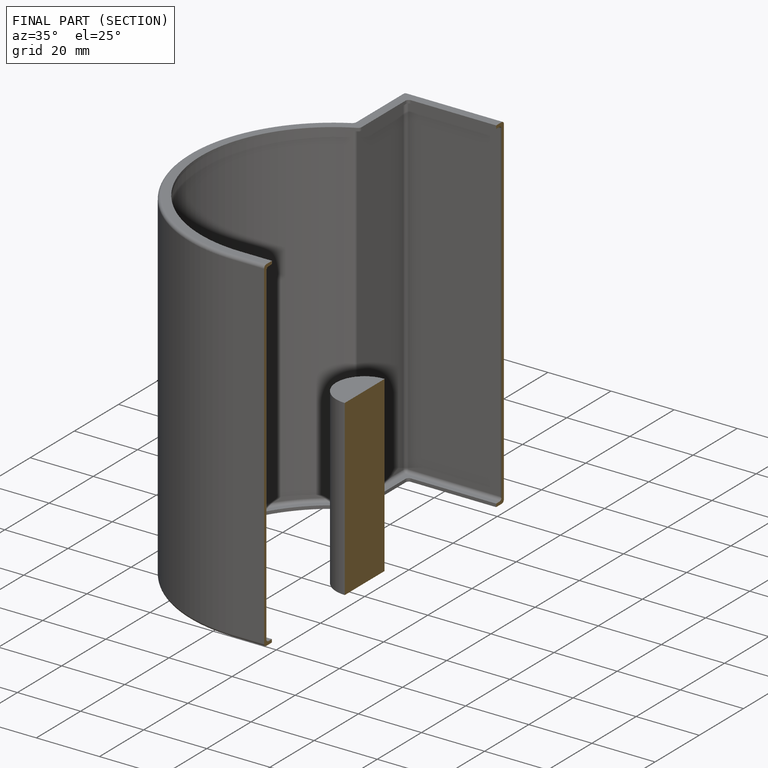
[diagram: finished part — half-section view (interior)]
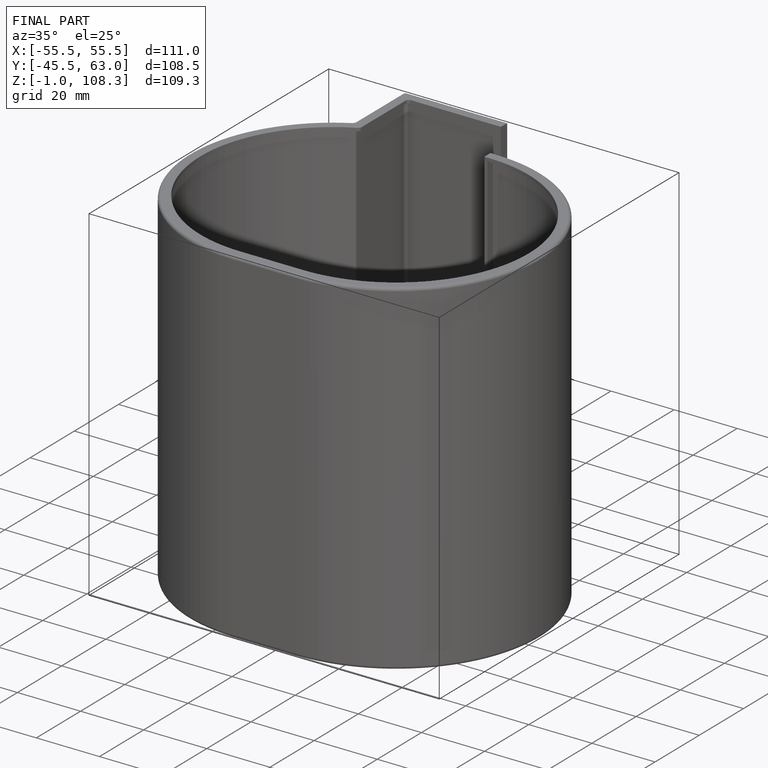
[diagram: finished part — iso view with bounding-box wireframe]
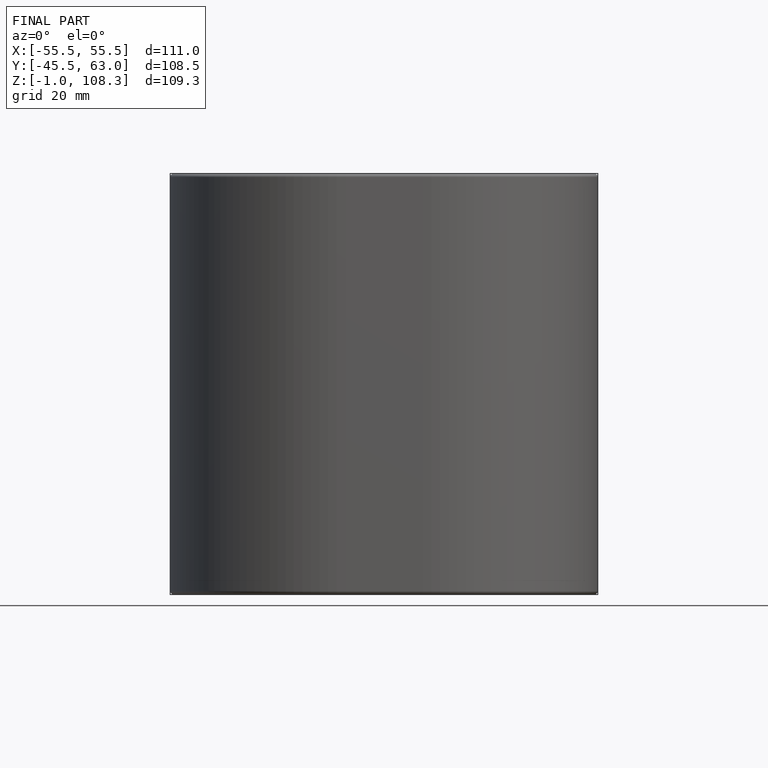
[diagram: finished part — front view with bounding-box wireframe]
